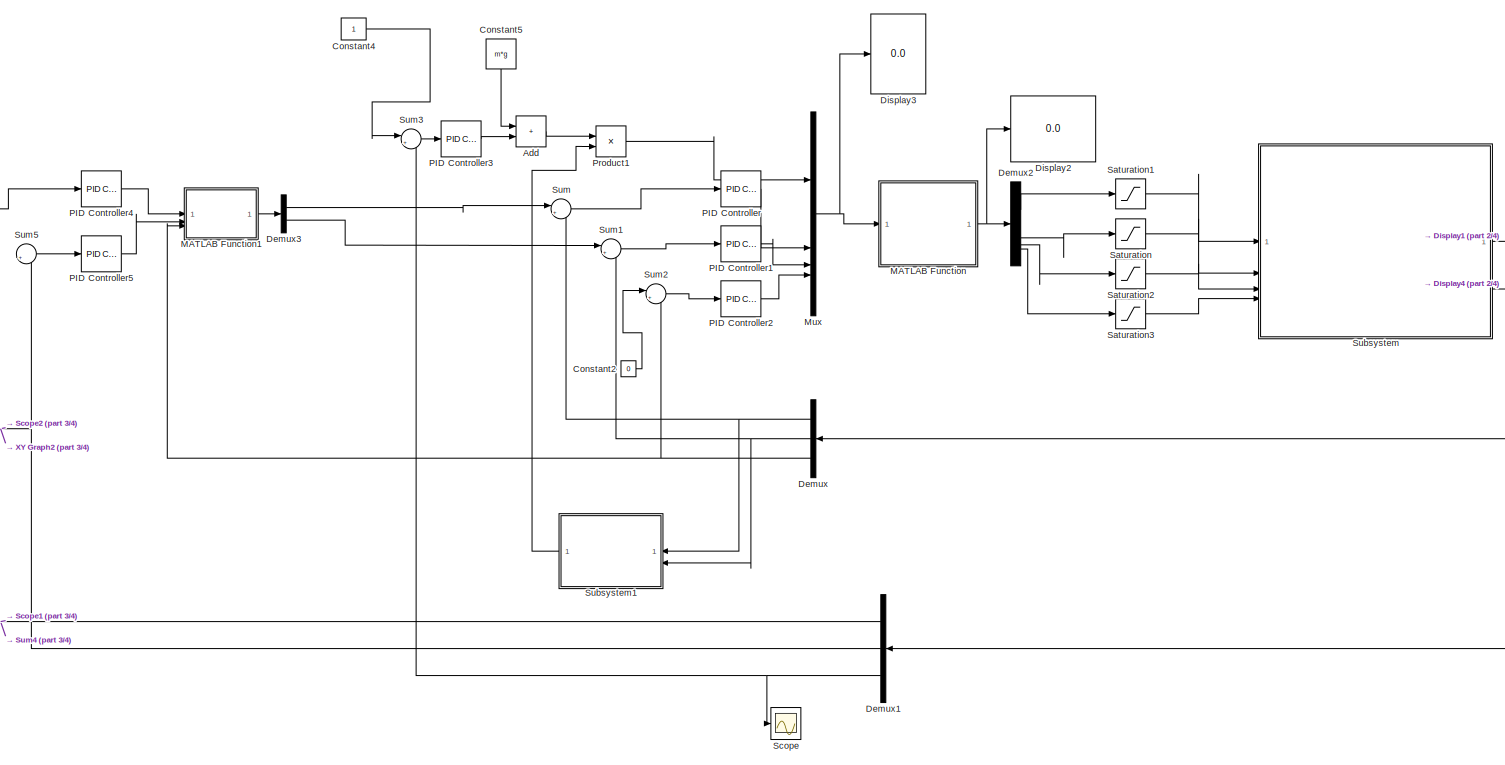
[diagram: root canvas - part 1/4, center side, full height]
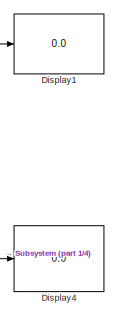
[diagram: root canvas - part 2/4, top center region]
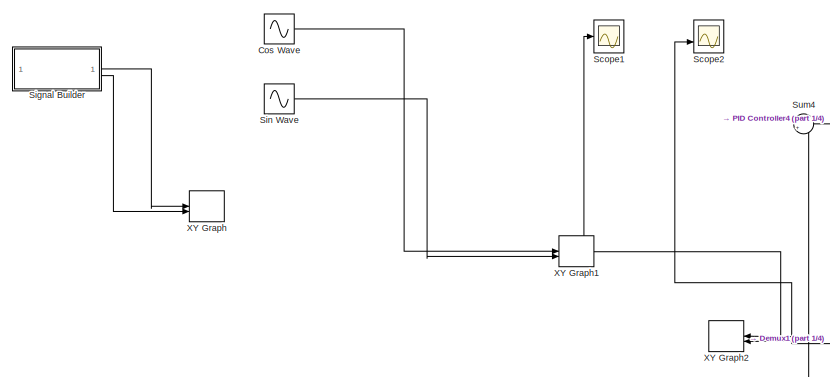
[diagram: root canvas - part 3/4, top left region]
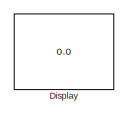
[diagram: root canvas - part 4/4, bottom right region]
MODEL slx_c34be43e2068
KIND model
CONFIG AbsTol = auto
CONFIG EnableMultiTasking = off
CONFIG FixedStep = auto
CONFIG MaxStep = auto
CONFIG MinStep = auto
CONFIG RelTol = 1e-3
CONFIG SampleTimeConstraint = Unconstrained
CONFIG SolverName = VariableStepAuto
CONFIG StartTime = 0.0
CONFIG StopTime = 15
BLOCK [Sum] Add
  IconShape = rectangular
BLOCK [Constant] Constant2
  Value = 0
BLOCK [Constant] Constant4
BLOCK [Constant] Constant5
  NameLocation = left
  Value = m*g
BLOCK [Sin] Cos Wave
  Phase = pi/2
  SampleTime = 0
BLOCK [Demux] Demux
  Outputs = 3
BLOCK [Demux] Demux1
  Outputs = 3
BLOCK [Demux] Demux2
BLOCK [Demux] Demux3
  Outputs = 2
BLOCK [Display] Display
  Decimation = 1
BLOCK [Display] Display1
  Decimation = 1
BLOCK [Display] Display2
  Decimation = 1
BLOCK [Display] Display3
  Decimation = 1
BLOCK [Display] Display4
  Decimation = 1
BLOCK [SubSystem] MATLAB Function
  ErrorFcn = Stateflow.Translate.translate
  LibrarySourceBlock = simulink/User-Defined\nFunctions/MATLAB Function
  PermitHierarchicalResolution = ExplicitOnly
  SFBlockType = MATLAB Function
  TreatAsAtomicUnit = on
BLOCK [Demux] MATLAB Function/ Demux 
  Outputs = 1
BLOCK [S-Function] MATLAB Function/ SFunction 
  EnableBusSupport = on
  FunctionName = sf_sfun
  PortCounts = [1 2]
  SFcnIsStateOwnerBlock = off
  SFunctionDeploymentMode = off
  Tag = Stateflow S-Function 10
BLOCK [Terminator] MATLAB Function/ Terminator 
BLOCK [Inport] MATLAB Function/tinp
BLOCK [Outport] MATLAB Function/vel
BLOCK [SubSystem] MATLAB Function1
  ErrorFcn = Stateflow.Translate.translate
  LibrarySourceBlock = simulink/User-Defined\nFunctions/MATLAB Function
  PermitHierarchicalResolution = ExplicitOnly
  SFBlockType = MATLAB Function
  TreatAsAtomicUnit = on
BLOCK [Demux] MATLAB Function1/ Demux 
  Outputs = 1
BLOCK [S-Function] MATLAB Function1/ SFunction 
  EnableBusSupport = on
  FunctionName = sf_sfun
  PortCounts = [3 2]
  SFcnIsStateOwnerBlock = off
  SFunctionDeploymentMode = off
  Tag = Stateflow S-Function 6
BLOCK [Terminator] MATLAB Function1/ Terminator 
BLOCK [Outport] MATLAB Function1/ang
BLOCK [Inport] MATLAB Function1/xerr
BLOCK [Inport] MATLAB Function1/yaw
  Port = 3
BLOCK [Inport] MATLAB Function1/yerr
  Port = 2
BLOCK [Mux] Mux
  DisplayOption = bar
BLOCK [Reference] PID Controller  REF=slpidlib/PID Controller
  LibrarySourceBlock = simulink/Continuous/PID Controller
  SourceBlock = slpidlib/PID Controller
  SourceType = PID 1dof
BLOCK [Reference] PID Controller1  REF=slpidlib/PID Controller
  LibrarySourceBlock = simulink/Continuous/PID Controller
  SourceBlock = slpidlib/PID Controller
  SourceType = PID 1dof
BLOCK [Reference] PID Controller2  REF=slpidlib/PID Controller
  LibrarySourceBlock = simulink/Continuous/PID Controller
  SourceBlock = slpidlib/PID Controller
  SourceType = PID 1dof
BLOCK [Reference] PID Controller3  REF=slpidlib/PID Controller
  LibrarySourceBlock = simulink/Continuous/PID Controller
  SourceBlock = slpidlib/PID Controller
  SourceType = PID 1dof
BLOCK [Reference] PID Controller4  REF=slpidlib/PID Controller
  LibrarySourceBlock = simulink/Continuous/PID Controller
  SourceBlock = slpidlib/PID Controller
  SourceType = PID 1dof
BLOCK [Reference] PID Controller5  REF=slpidlib/PID Controller
  LibrarySourceBlock = simulink/Continuous/PID Controller
  SourceBlock = slpidlib/PID Controller
  SourceType = PID 1dof
BLOCK [Product] Product1
BLOCK [Saturate] Saturation
  LowerLimit = 0
  UpperLimit = inf
BLOCK [Saturate] Saturation1
  LowerLimit = 0
  UpperLimit = inf
BLOCK [Saturate] Saturation2
  LowerLimit = 0
  UpperLimit = inf
BLOCK [Saturate] Saturation3
  LowerLimit = 0
  UpperLimit = inf
BLOCK [Scope] Scope
  Floating = off
  NumInputPorts = 1
  ScopeSpecificationString = Simulink.scopes.TimeScopeBlockCfg('CurrentConfiguration', extmgr.ConfigurationSet(extmgr.Configuration('Core','General UI',true),extmgr.Configuration('Core','Source UI',true),extmgr.Configuration('Sources','WiredSimulink',true),extmgr.Configuration('Visuals','Time Domain',true,'SerializedDisplays',{struct('MinYLimReal','-4.68686','MaxYLimReal','3.63666','YLabelReal','','MinYLimMag','0.00000','MaxY...<+1357ch>
BLOCK [Scope] Scope1
  Floating = off
  NumInputPorts = 2
  ScopeSpecificationString = Simulink.scopes.TimeScopeBlockCfg('CurrentConfiguration', extmgr.ConfigurationSet(extmgr.Configuration('Core','General UI',true),extmgr.Configuration('Core','Source UI',true),extmgr.Configuration('Sources','WiredSimulink',true,'DataLoggingVariableName','ScopeData1'),extmgr.Configuration('Visuals','Time Domain',true,'SerializedDisplays',{struct('MinYLimReal','-5.50715','MaxYLimReal','49.56434','YLa...<+1390ch>
BLOCK [Scope] Scope2
  Floating = off
  NumInputPorts = 2
  ScopeSpecificationString = Simulink.scopes.TimeScopeBlockCfg('CurrentConfiguration', extmgr.ConfigurationSet(extmgr.Configuration('Core','General UI',true),extmgr.Configuration('Core','Source UI',true),extmgr.Configuration('Sources','WiredSimulink',true,'DataLoggingVariableName','ScopeData2'),extmgr.Configuration('Visuals','Time Domain',true,'SerializedDisplays',{struct('MinYLimReal','-41.13949','MaxYLimReal','6.83257','YLa...<+1390ch>
BLOCK [SubSystem] Signal Builder
  ClipboardFcn = sigbuilder_block('clipboard');
  CloseFcn = sigbuilder_block('close');
  ContinueFcn = sigbuilder_block('continue');
  CopyFcn = sigbuilder_block('copy');
  DeleteFcn = sigbuilder_block('delete');
  LoadFcn = sigbuilder_block('load');
  MaskHideContents = on
  ModelCloseFcn = sigbuilder_block('modelClose');
  NameChangeFcn = sigbuilder_block('namechange');
  OpenFcn = sigbuilder_block('open',[437.6 199.2 625.4 400 ]);
  PauseFcn = sigbuilder_block('pause');
  PreSaveFcn = sigbuilder_block('preSave');
  StartFcn = sigbuilder_block('start');
  StopFcn = sigbuilder_block('stop');
  Tag = STV Subsys
BLOCK [Demux] Signal Builder/Demux
  DisplayOption = none
  Outputs = 2
  Tag = STV Demux
BLOCK [FromWorkspace] Signal Builder/FromWs
  Tag = STV FromWs
  VariableName = tuvar
BLOCK [Outport] Signal Builder/Signal 1
  Port = 2
  Tag = STV Outport
BLOCK [Outport] Signal Builder/Signal 2
  Tag = STV Outport
BLOCK [Sin] Sin Wave
  SampleTime = 0
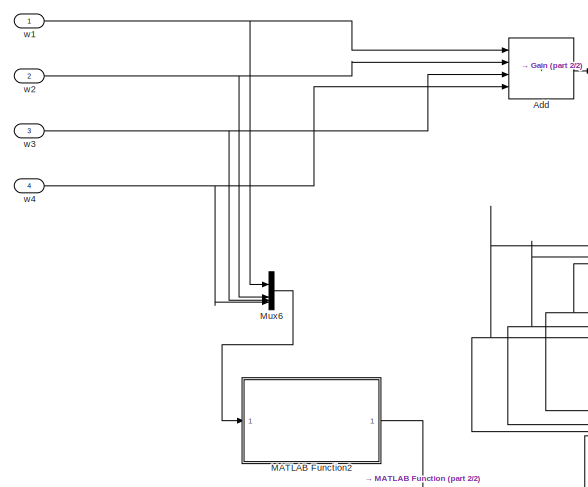
[diagram: Subsystem - part 1/2, middle left region]
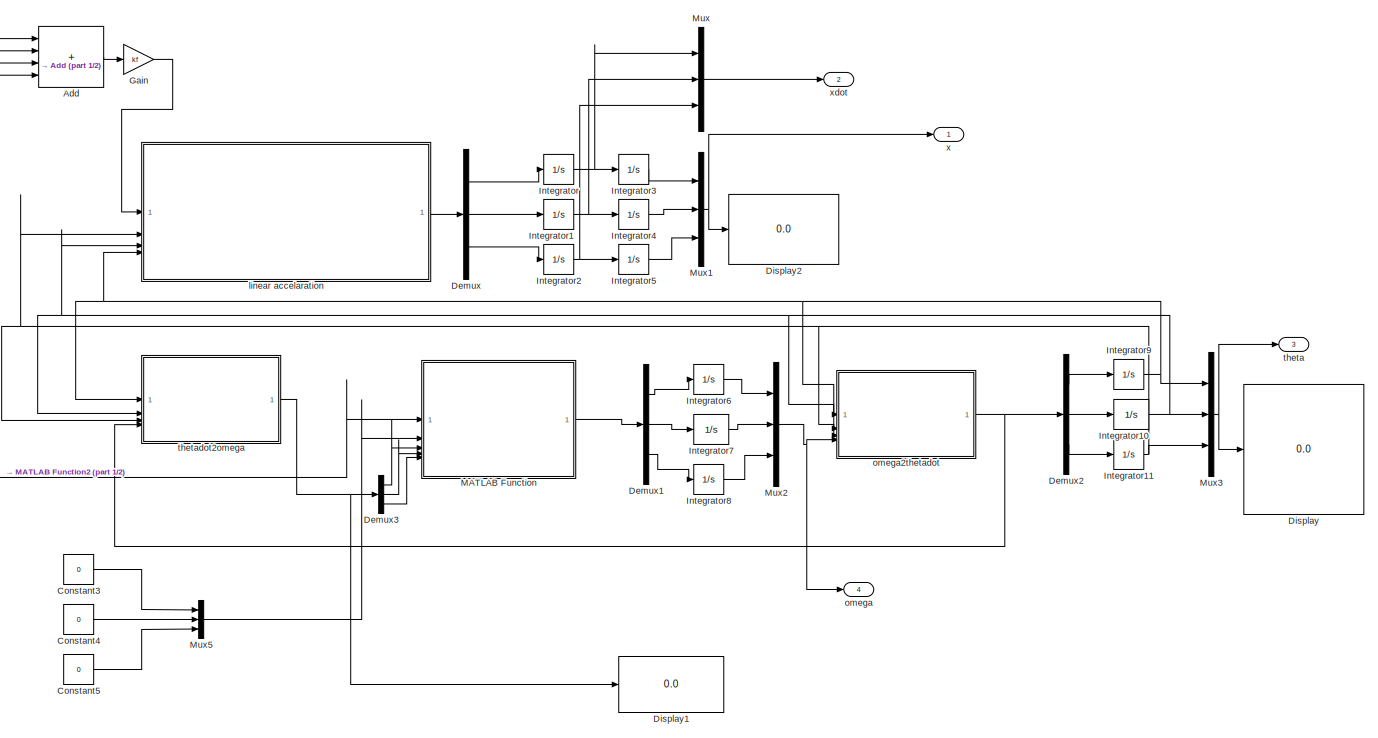
[diagram: Subsystem - part 2/2, most of the canvas]
BLOCK [SubSystem] Subsystem
BLOCK [Sum] Subsystem/Add
  IconShape = rectangular
  Inputs = ++++
BLOCK [Constant] Subsystem/Constant3
  Value = 0
BLOCK [Constant] Subsystem/Constant4
  Value = 0
BLOCK [Constant] Subsystem/Constant5
  Value = 0
BLOCK [Demux] Subsystem/Demux
  Outputs = 3
BLOCK [Demux] Subsystem/Demux1
  Outputs = 3
BLOCK [Demux] Subsystem/Demux2
  Outputs = 3
BLOCK [Demux] Subsystem/Demux3
  Outputs = 3
BLOCK [Display] Subsystem/Display
  Decimation = 1
BLOCK [Display] Subsystem/Display1
  Decimation = 1
BLOCK [Display] Subsystem/Display2
  Decimation = 1
BLOCK [Gain] Subsystem/Gain
  Gain = kf
BLOCK [Integrator] Subsystem/Integrator
BLOCK [Integrator] Subsystem/Integrator1
BLOCK [Integrator] Subsystem/Integrator10
  WrapState = on
BLOCK [Integrator] Subsystem/Integrator11
  WrapState = on
BLOCK [Integrator] Subsystem/Integrator2
BLOCK [Integrator] Subsystem/Integrator3
BLOCK [Integrator] Subsystem/Integrator4
BLOCK [Integrator] Subsystem/Integrator5
  UpperSaturationLimit = 0
BLOCK [Integrator] Subsystem/Integrator6
BLOCK [Integrator] Subsystem/Integrator7
BLOCK [Integrator] Subsystem/Integrator8
BLOCK [Integrator] Subsystem/Integrator9
  WrapState = on
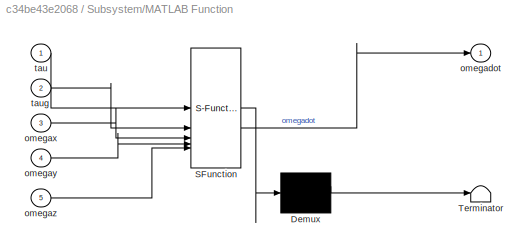
BLOCK [SubSystem] Subsystem/MATLAB Function
  ErrorFcn = Stateflow.Translate.translate
  LibrarySourceBlock = simulink/User-Defined\nFunctions/MATLAB Function
  PermitHierarchicalResolution = ExplicitOnly
  SFBlockType = MATLAB Function
  TreatAsAtomicUnit = on
BLOCK [Demux] Subsystem/MATLAB Function/ Demux 
  Outputs = 1
BLOCK [S-Function] Subsystem/MATLAB Function/ SFunction 
  EnableBusSupport = on
  FunctionName = sf_sfun
  PortCounts = [5 2]
  SFcnIsStateOwnerBlock = off
  SFunctionDeploymentMode = off
  Tag = Stateflow S-Function 5
BLOCK [Terminator] Subsystem/MATLAB Function/ Terminator 
BLOCK [Outport] Subsystem/MATLAB Function/omegadot
BLOCK [Inport] Subsystem/MATLAB Function/omegax
  Port = 3
BLOCK [Inport] Subsystem/MATLAB Function/omegay
  Port = 4
BLOCK [Inport] Subsystem/MATLAB Function/omegaz
  Port = 5
BLOCK [Inport] Subsystem/MATLAB Function/tau
BLOCK [Inport] Subsystem/MATLAB Function/taug
  Port = 2
BLOCK [SubSystem] Subsystem/MATLAB Function2
  ErrorFcn = Stateflow.Translate.translate
  LibrarySourceBlock = simulink/User-Defined\nFunctions/MATLAB Function
  PermitHierarchicalResolution = ExplicitOnly
  SFBlockType = MATLAB Function
  TreatAsAtomicUnit = on
BLOCK [Demux] Subsystem/MATLAB Function2/ Demux 
  Outputs = 1
BLOCK [S-Function] Subsystem/MATLAB Function2/ SFunction 
  EnableBusSupport = on
  FunctionName = sf_sfun
  PortCounts = [1 2]
  SFcnIsStateOwnerBlock = off
  SFunctionDeploymentMode = off
  Tag = Stateflow S-Function 1
BLOCK [Terminator] Subsystem/MATLAB Function2/ Terminator 
BLOCK [Outport] Subsystem/MATLAB Function2/tau
BLOCK [Inport] Subsystem/MATLAB Function2/wsquare
BLOCK [Mux] Subsystem/Mux
  DisplayOption = bar
  Inputs = 3
BLOCK [Mux] Subsystem/Mux1
  DisplayOption = bar
  Inputs = 3
BLOCK [Mux] Subsystem/Mux2
  DisplayOption = bar
  Inputs = 3
BLOCK [Mux] Subsystem/Mux3
  DisplayOption = bar
  Inputs = 3
BLOCK [Mux] Subsystem/Mux5
  DisplayOption = bar
  Inputs = 3
BLOCK [Mux] Subsystem/Mux6
  DisplayOption = bar
BLOCK [SubSystem] Subsystem/linear accelaration
  ErrorFcn = Stateflow.Translate.translate
  LibrarySourceBlock = simulink/User-Defined\nFunctions/MATLAB Function
  PermitHierarchicalResolution = ExplicitOnly
  SFBlockType = MATLAB Function
  TreatAsAtomicUnit = on
BLOCK [Demux] Subsystem/linear accelaration/ Demux 
  Outputs = 1
BLOCK [S-Function] Subsystem/linear accelaration/ SFunction 
  EnableBusSupport = on
  FunctionName = sf_sfun
  PortCounts = [4 2]
  SFcnIsStateOwnerBlock = off
  SFunctionDeploymentMode = off
  Tag = Stateflow S-Function 2
BLOCK [Terminator] Subsystem/linear accelaration/ Terminator 
BLOCK [Inport] Subsystem/linear accelaration/T
BLOCK [Inport] Subsystem/linear accelaration/phi
  Port = 4
BLOCK [Inport] Subsystem/linear accelaration/psi
  Port = 2
BLOCK [Inport] Subsystem/linear accelaration/theta
  Port = 3
BLOCK [Outport] Subsystem/linear accelaration/xddot
BLOCK [Outport] Subsystem/omega
  Port = 4
BLOCK [SubSystem] Subsystem/omega2thetadot
  ErrorFcn = Stateflow.Translate.translate
  LibrarySourceBlock = simulink/User-Defined\nFunctions/MATLAB Function
  PermitHierarchicalResolution = ExplicitOnly
  SFBlockType = MATLAB Function
  TreatAsAtomicUnit = on
BLOCK [Demux] Subsystem/omega2thetadot/ Demux 
  Outputs = 1
BLOCK [S-Function] Subsystem/omega2thetadot/ SFunction 
  EnableBusSupport = on
  FunctionName = sf_sfun
  PortCounts = [4 2]
  SFcnIsStateOwnerBlock = off
  SFunctionDeploymentMode = off
  Tag = Stateflow S-Function 4
BLOCK [Terminator] Subsystem/omega2thetadot/ Terminator 
BLOCK [Inport] Subsystem/omega2thetadot/omega
  Port = 4
BLOCK [Inport] Subsystem/omega2thetadot/phi
BLOCK [Inport] Subsystem/omega2thetadot/psi
  Port = 3
BLOCK [Inport] Subsystem/omega2thetadot/theta
  Port = 2
BLOCK [Outport] Subsystem/omega2thetadot/thetadot
BLOCK [Outport] Subsystem/theta
  Port = 3
BLOCK [SubSystem] Subsystem/thetadot2omega
  ErrorFcn = Stateflow.Translate.translate
  LibrarySourceBlock = simulink/User-Defined\nFunctions/MATLAB Function
  PermitHierarchicalResolution = ExplicitOnly
  SFBlockType = MATLAB Function
  TreatAsAtomicUnit = on
BLOCK [Demux] Subsystem/thetadot2omega/ Demux 
  Outputs = 1
BLOCK [S-Function] Subsystem/thetadot2omega/ SFunction 
  EnableBusSupport = on
  FunctionName = sf_sfun
  PortCounts = [4 2]
  SFcnIsStateOwnerBlock = off
  SFunctionDeploymentMode = off
  Tag = Stateflow S-Function 3
BLOCK [Terminator] Subsystem/thetadot2omega/ Terminator 
BLOCK [Outport] Subsystem/thetadot2omega/omega
BLOCK [Inport] Subsystem/thetadot2omega/phi
BLOCK [Inport] Subsystem/thetadot2omega/psi
  Port = 3
BLOCK [Inport] Subsystem/thetadot2omega/theta
  Port = 2
BLOCK [Inport] Subsystem/thetadot2omega/thetadot
  Port = 4
BLOCK [Inport] Subsystem/w1
BLOCK [Inport] Subsystem/w2
  Port = 2
BLOCK [Inport] Subsystem/w3
  Port = 3
BLOCK [Inport] Subsystem/w4
  Port = 4
BLOCK [Outport] Subsystem/x
BLOCK [Outport] Subsystem/xdot
  Port = 2
BLOCK [SubSystem] Subsystem1
BLOCK [Constant] Subsystem1/Constant3
BLOCK [Trigonometry] Subsystem1/Cos
  Operator = cos
BLOCK [Trigonometry] Subsystem1/Cos1
  Operator = cos
BLOCK [Product] Subsystem1/Divide
  Inputs = */
BLOCK [Product] Subsystem1/Product
BLOCK [Outport] Subsystem1/denom
BLOCK [Inport] Subsystem1/phi
  Port = 2
BLOCK [Inport] Subsystem1/theta
BLOCK [Sum] Sum
  Inputs = |+-
BLOCK [Sum] Sum1
  Inputs = |+-
BLOCK [Sum] Sum2
  Inputs = |+-
BLOCK [Sum] Sum3
  Inputs = |+-
BLOCK [Sum] Sum4
  Inputs = |+-
BLOCK [Sum] Sum5
  Inputs = |+-
BLOCK [Record] XY Graph
  CompatibilityTag = XY
  FileSettingsInternal = {"entries":[{"content":{"excelSettings":{"content":{},"type":"Streamout.ExcelSettings"}},"type":"Streamout.FileSettingStorage","uuid":"329b01a4-5a03-402c-b223-cddbb6dcb2c3"}],"packageUris":["http://schema.mathworks.com/mf0/streamout_blocks/R2020a"],"version":"1.0"}
  Layout = [1 1]
  SignalsInternal = {"entries":[{"content":{"signals":[{"content":{"blockPath":["drone2circle/XY Graph"],"channel":[],"dimensions":[1],"domain":"drone2circle/XY Graph","lineColor":"#a2142f","plots":[1],"port":1,"sid":[""],"signalID":25624,"signalName":"Signal Builder:1"},"type":"RecordBlkView.Signal","uuid":"b82ef0dd-1823-440b-b9cf-364427f2a54c"},{"content":{"blockPath":["drone2circle/XY Graph"],"channel":[],"dimensi...<+399ch>
  VisualizationBindings = {"xyplotplugin":{"info":[{"series":[{"bindingParametersList":[{"parameter":"X-Axis","signalID":25624,"signalName":"Signal Builder:1"},{"parameter":"Y-Axis","signalID":25628,"signalName":"Signal Builder:2"}],"seriesID":64467}],"subplotID":1}]}}
BLOCK [Record] XY Graph1
  CompatibilityTag = XY
  FileSettingsInternal = {"entries":[{"content":{"excelSettings":{"content":{},"type":"Streamout.ExcelSettings"}},"type":"Streamout.FileSettingStorage","uuid":"d41941f9-50ee-48de-8f44-77abd7d317d6"}],"packageUris":["http://schema.mathworks.com/mf0/streamout_blocks/R2020a"],"version":"1.0"}
  Layout = [1 1]
  SignalsInternal = {"entries":[{"content":{"signals":[{"content":{"blockPath":["drone2circle/XY Graph1"],"channel":[],"dimensions":[1],"domain":"drone2circle/XY Graph1","lineColor":"#a2142f","plots":[1],"port":1,"sid":[""],"signalID":25640,"signalName":"Cos Wave"},"type":"RecordBlkView.Signal","uuid":"643df27d-d9a4-400b-83ca-b399df6aea83"},{"content":{"blockPath":["drone2circle/XY Graph1"],"channel":[],"dimensions":...<+387ch>
  VisualizationBindings = {"xyplotplugin":{"info":[{"series":[{"bindingParametersList":[{"parameter":"X-Axis","signalID":25640,"signalName":"Cos Wave"},{"parameter":"Y-Axis","signalID":25644,"signalName":"Sin Wave"}],"seriesID":36415}],"subplotID":1}]}}
BLOCK [Record] XY Graph2
  CompatibilityTag = XY
  FileSettingsInternal = {"entries":[{"content":{"excelSettings":{"content":{},"type":"Streamout.ExcelSettings"}},"type":"Streamout.FileSettingStorage","uuid":"42b0286d-d962-4f1b-a174-c02fdc9c94e0"}],"packageUris":["http://schema.mathworks.com/mf0/streamout_blocks/R2020a"],"version":"1.0"}
  Layout = [1 1]
  SignalsInternal = {"entries":[{"content":{"signals":[{"content":{"blockPath":["drone2circle/XY Graph2"],"channel":[],"dimensions":[1],"domain":"drone2circle/XY Graph2","lineColor":"#a2142f","plots":[1],"port":1,"sid":[""],"signalID":25632,"signalName":"Demux1:1"},"type":"RecordBlkView.Signal","uuid":"b6d1cdaa-0221-4b7d-bdef-66a82723fb3a"},{"content":{"blockPath":["drone2circle/XY Graph2"],"channel":[],"dimensions":...<+387ch>
  VisualizationBindings = {"xyplotplugin":{"info":[{"series":[{"bindingParametersList":[{"parameter":"X-Axis","signalID":25632,"signalName":"Demux1:1"},{"parameter":"Y-Axis","signalID":25636,"signalName":"Demux1:2"}],"seriesID":15380}],"subplotID":1}]}}
LINE Add:1 -> Product1:1
LINE Constant2:1 -> Sum2:1
LINE Constant4:1 -> Sum3:1
LINE Constant5:1 -> Add:1
LINE Cos Wave:1 -> XY Graph1:1
NET Demux1:1 -> Scope1:1, Sum4:2, XY Graph2:1
NET Demux1:2 -> Scope2:2, Sum5:2, XY Graph2:2
NET Demux1:3 -> Scope:1, Sum3:2
LINE Demux2:1 -> Saturation1:1
LINE Demux2:2 -> Saturation:1
LINE Demux2:3 -> Saturation2:1
LINE Demux2:4 -> Saturation3:1
LINE Demux3:1 -> Sum:1
LINE Demux3:2 -> Sum1:1
NET Demux:1 -> Subsystem1:1, Sum:2
NET Demux:2 -> Subsystem1:2, Sum1:2
NET Demux:3 -> MATLAB Function1:3, Sum2:2
LINE MATLAB Function1:1 -> Demux3:1
NET MATLAB Function:1 -> Demux2:1, Display2:1
NET Mux:1 -> Display3:1, MATLAB Function:1
LINE PID Controller1:1 -> Mux:3
LINE PID Controller2:1 -> Mux:4
LINE PID Controller3:1 -> Add:2
LINE PID Controller4:1 -> MATLAB Function1:1
LINE PID Controller5:1 -> MATLAB Function1:2
LINE PID Controller:1 -> Mux:2
LINE Product1:1 -> Mux:1
LINE Saturation1:1 -> Subsystem:1
LINE Saturation2:1 -> Subsystem:3
LINE Saturation3:1 -> Subsystem:4
LINE Saturation:1 -> Subsystem:2
LINE Signal Builder:1 -> XY Graph:1
LINE Signal Builder:2 -> XY Graph:2
LINE Sin Wave:1 -> XY Graph1:2
LINE Subsystem/Add:1 -> Subsystem/Gain:1
LINE Subsystem/Constant3:1 -> Subsystem/Mux5:1
LINE Subsystem/Constant4:1 -> Subsystem/Mux5:2
LINE Subsystem/Constant5:1 -> Subsystem/Mux5:3
LINE Subsystem/Demux1:1 -> Subsystem/Integrator6:1
LINE Subsystem/Demux1:2 -> Subsystem/Integrator7:1
LINE Subsystem/Demux1:3 -> Subsystem/Integrator8:1
LINE Subsystem/Demux2:1 -> Subsystem/Integrator9:1
LINE Subsystem/Demux2:2 -> Subsystem/Integrator10:1
LINE Subsystem/Demux2:3 -> Subsystem/Integrator11:1
LINE Subsystem/Demux3:1 -> Subsystem/MATLAB Function:3
LINE Subsystem/Demux3:2 -> Subsystem/MATLAB Function:4
LINE Subsystem/Demux3:3 -> Subsystem/MATLAB Function:5
LINE Subsystem/Demux:1 -> Subsystem/Integrator:1
LINE Subsystem/Demux:2 -> Subsystem/Integrator1:1
LINE Subsystem/Demux:3 -> Subsystem/Integrator2:1
LINE Subsystem/Gain:1 -> Subsystem/linear accelaration:1
NET Subsystem/Integrator10:1 -> Subsystem/Mux3:2, Subsystem/linear accelaration:3, Subsystem/omega2thetadot:2, Subsystem/thetadot2omega:2
NET Subsystem/Integrator11:1 -> Subsystem/Mux3:3, Subsystem/linear accelaration:2, Subsystem/omega2thetadot:3, Subsystem/thetadot2omega:3
NET Subsystem/Integrator1:1 -> Subsystem/Integrator4:1, Subsystem/Mux:2
NET Subsystem/Integrator2:1 -> Subsystem/Integrator5:1, Subsystem/Mux:3
LINE Subsystem/Integrator3:1 -> Subsystem/Mux1:1
LINE Subsystem/Integrator4:1 -> Subsystem/Mux1:2
LINE Subsystem/Integrator5:1 -> Subsystem/Mux1:3
LINE Subsystem/Integrator6:1 -> Subsystem/Mux2:1
LINE Subsystem/Integrator7:1 -> Subsystem/Mux2:2
LINE Subsystem/Integrator8:1 -> Subsystem/Mux2:3
NET Subsystem/Integrator9:1 -> Subsystem/Mux3:1, Subsystem/linear accelaration:4, Subsystem/omega2thetadot:1, Subsystem/thetadot2omega:1
NET Subsystem/Integrator:1 -> Subsystem/Integrator3:1, Subsystem/Mux:1
LINE Subsystem/MATLAB Function2:1 -> Subsystem/MATLAB Function:1
LINE Subsystem/MATLAB Function:1 -> Subsystem/Demux1:1
NET Subsystem/Mux1:1 -> Subsystem/Display2:1, Subsystem/x:1
NET Subsystem/Mux2:1 -> Subsystem/omega2thetadot:4, Subsystem/omega:1
NET Subsystem/Mux3:1 -> Subsystem/Display:1, Subsystem/theta:1
LINE Subsystem/Mux5:1 -> Subsystem/MATLAB Function:2
LINE Subsystem/Mux6:1 -> Subsystem/MATLAB Function2:1
LINE Subsystem/Mux:1 -> Subsystem/xdot:1
LINE Subsystem/linear accelaration:1 -> Subsystem/Demux:1
NET Subsystem/omega2thetadot:1 -> Subsystem/Demux2:1, Subsystem/thetadot2omega:4
NET Subsystem/thetadot2omega:1 -> Subsystem/Demux3:1, Subsystem/Display1:1
NET Subsystem/w1:1 -> Subsystem/Add:1, Subsystem/Mux6:1
NET Subsystem/w2:1 -> Subsystem/Add:2, Subsystem/Mux6:2
NET Subsystem/w3:1 -> Subsystem/Add:3, Subsystem/Mux6:3
NET Subsystem/w4:1 -> Subsystem/Add:4, Subsystem/Mux6:4
LINE Subsystem1/Constant3:1 -> Subsystem1/Divide:1
LINE Subsystem1/Cos1:1 -> Subsystem1/Product:2
LINE Subsystem1/Cos:1 -> Subsystem1/Product:1
LINE Subsystem1/Divide:1 -> Subsystem1/denom:1
LINE Subsystem1/Product:1 -> Subsystem1/Divide:2
LINE Subsystem1/phi:1 -> Subsystem1/Cos1:1
LINE Subsystem1/theta:1 -> Subsystem1/Cos:1
LINE Subsystem1:1 -> Product1:2
NET Subsystem:1 -> Demux1:1, Display1:1
NET Subsystem:3 -> Demux:1, Display4:1
LINE Sum1:1 -> PID Controller1:1
LINE Sum2:1 -> PID Controller2:1
LINE Sum3:1 -> PID Controller3:1
LINE Sum4:1 -> PID Controller4:1
LINE Sum5:1 -> PID Controller5:1
LINE Sum:1 -> PID Controller:1
note: NET lines group one-source signal fan-out (src -> all destinations, sorted); 1:1 wires keep LINE
CHART Subsystem/MATLAB Function2 states=1 transitions=1
  STATE_LABEL 'eML_blk_kernel()'
  STATE_LABEL 'SCRIPT:\nfunction tau = fcn(wsquare)\nkf = 0.005022;\nkm = 1.858*10^-5;\nL = 0.032;\nmma = [ 0 kf*L 0 -kf*L ; -kf*L 0 kf*L  0 ; km -km km -km ];\ntau = mma*wsquare;'
CHART Subsystem/linear accelaration states=1 transitions=1
  STATE_LABEL 'eML_blk_kernel()'
  STATE_LABEL 'SCRIPT:\nfunction xddot = fcn(T,psi,theta,phi)\n\nxddot = [0.0 ; 0.0 ; 0.0] ;\nm = 34*10^-3 ;\ng = 9.8 ;\nF_x_g = 0.0;\nF_y_g = 0.0;\n\nxddot(1,1) = (T/m)*(sin(psi)*sin(phi) + cos(psi)*cos(phi)*sin(theta)) - (F_x_g/m);\nxddot(2,1) = (T/m)*(-cos(psi)*sin(phi) + sin(psi)*cos(phi)*sin(theta)) - (F_y_g/m);\nxddot(3,1) = (T/m)*(cos(psi)*cos(theta)) - g;\n\n\n\n\n'
CHART Subsystem/thetadot2omega states=1 transitions=1
  STATE_LABEL 'eML_blk_kernel()'
  STATE_LABEL 'SCRIPT:\nfunction omega = fcn(phi,theta,psi,thetadot)\nR = [1 0 -sin(theta) ; 0 cos(phi) cos(theta)*sin(phi) ; 0 -sin(phi) cos(theta)*cos(phi)] ;\nomega = R*thetadot;\n'
CHART Subsystem/omega2thetadot states=1 transitions=1
  STATE_LABEL 'eML_blk_kernel()'
  STATE_LABEL 'SCRIPT:\nfunction thetadot = fcn(phi,theta,psi,omega)\nR = inv([1 0 -sin(theta) ; 0 cos(phi) cos(theta)*sin(phi) ; 0 -sin(phi) cos(theta)*cos(phi)]) ;\nthetadot = R*omega;\n'
CHART Subsystem/MATLAB Function states=1 transitions=1
  STATE_LABEL 'eML_blk_kernel()'
  STATE_LABEL 'SCRIPT:\nfunction omegadot = fcn(tau,taug,omegax,omegay,omegaz)\n\nixx = 2.3951*10^-5;\niyy = 2.3951*10^-5;\nizz = 3.2347*10^-5;\n\n\nomega_temp = zeros(3,1);\nomega_temp(1,1) = omegax;\nomega_temp(2,1) = omegay;\nomega_temp(3,1) = omegaz;\n\nInertia = [ixx 0 0 ; 0 iyy 0 ; 0 0 izz];\n\ndiff = tau - taug;\ncross_product = cross(omega_temp,Inertia*omega_temp);\nomegadot = inv(Inertia)*(diff - cross_product);\n'
CHART MATLAB Function1 states=1 transitions=1
  STATE_LABEL 'eML_blk_kernel()'
  STATE_LABEL 'SCRIPT:\nfunction ang = fcn(xerr,yerr,yaw)\nang = zeros(2,1);\nang(1,1) = xerr*sin(yaw) - yerr*cos(yaw);\nang(2,1) = xerr*cos(yaw) + yerr*sin(yaw);\n'
CHART MATLAB Function states=1 transitions=1
  STATE_LABEL 'eML_blk_kernel()'
  STATE_LABEL 'SCRIPT:\nfunction vel = fcn(tinp)\nkf= 0.005022;\nkm= 1.858*10^-5;\nL = 0.032;\nR = [ kf kf kf kf ; 0 kf*L 0 -kf*L ; -kf*L 0 kf*L 0 ; km -km km -km];\ninv_R = inv(R);\nvel_square = inv_R*tinp;\n%vel_square = max(vel_square,0.0);\n%vel_square = max(vel_square,0.000000001);\n%vel = sqrt(vel_square);\nvel=vel_square;\n'
CHART  states=0 transitions=0
CHART  states=0 transitions=0
CHART  states=0 transitions=0
CHART  states=0 transitions=0
CHART  states=0 transitions=0
CHART  states=0 transitions=0
CHART  states=0 transitions=0
